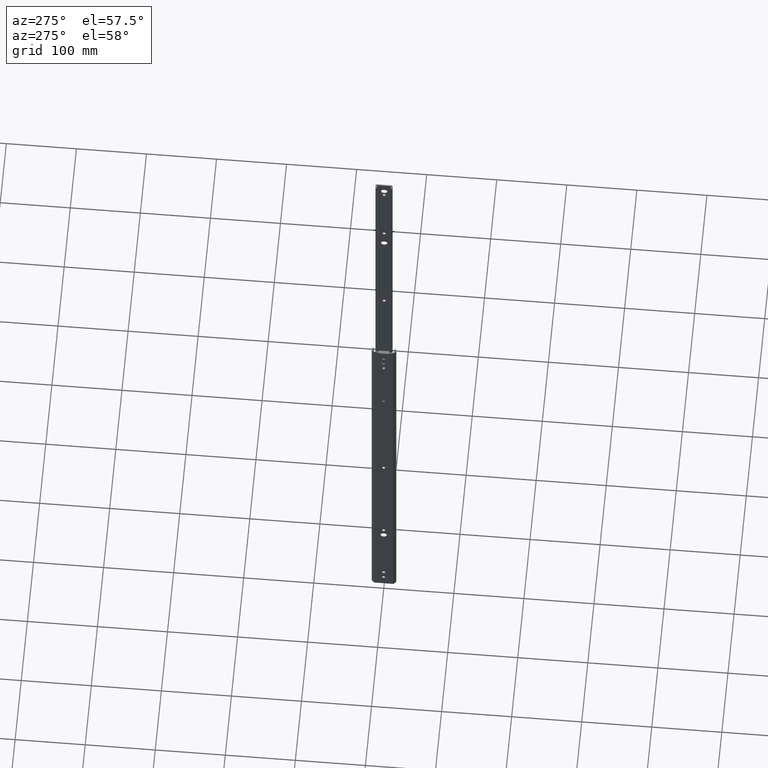
[diagram: clean part render]
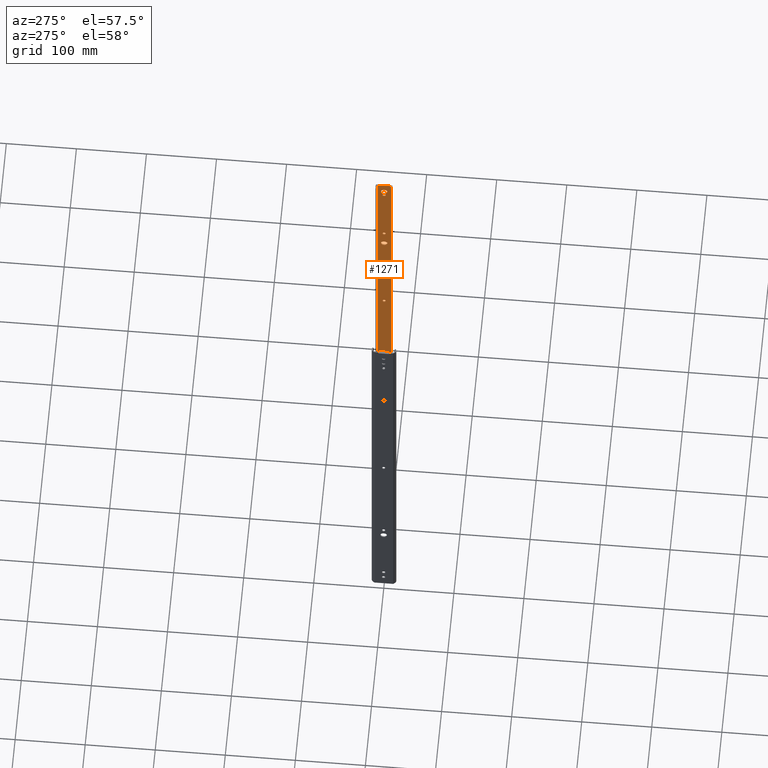
[diagram: same view with one face highlighted and labeled with its STEP entity id]
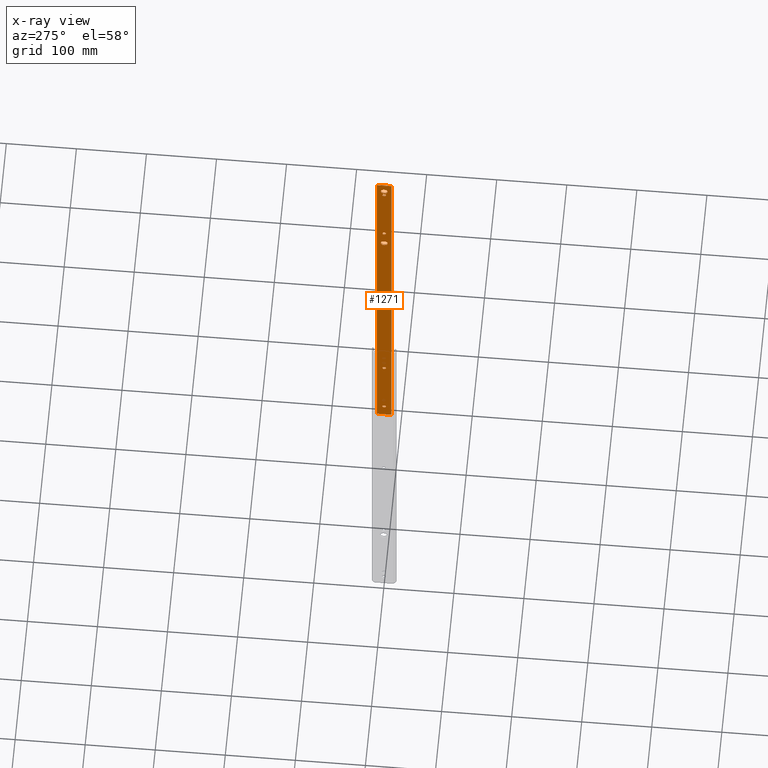
[diagram: x-ray of the same camera — body ghosted, the highlighted face saturated]
A machine part, auxiliary view. The second image highlights one B-rep face of the part: STEP entity #1271.
The next image is the same camera in x-ray: the body ghosted, the highlighted face saturated — about 0% of this face is hidden behind the body in this view.
In plain terms, the highlighted planar face has unit normal (-1, -0, 0).
Its self-contained STEP definition (entity closure, byte-faithful):
#129 = VERTEX_POINT ( 'NONE', #2255 ) ;
#156 = DIRECTION ( 'NONE',  ( 1.000000000000000000, 1.103235306215530262E-14, 0.0000000000000000000 ) ) ;
#169 = VERTEX_POINT ( 'NONE', #3537 ) ;
#201 = VECTOR ( 'NONE', #349, 1000.000000000000000 ) ;
#205 = VERTEX_POINT ( 'NONE', #1913 ) ;
#217 = ORIENTED_EDGE ( 'NONE', *, *, #3290, .T. ) ;
#253 = EDGE_CURVE ( 'NONE', #3720, #3005, #5193, .T. ) ;
#254 = LINE ( 'NONE', #1967, #3755 ) ;
#260 = VERTEX_POINT ( 'NONE', #1542 ) ;
#268 = ORIENTED_EDGE ( 'NONE', *, *, #1834, .T. ) ;
#269 = CIRCLE ( 'NONE', #3215, 4.750000000000004441 ) ;
#284 = EDGE_CURVE ( 'NONE', #5074, #1897, #1184, .T. ) ;
#291 = VERTEX_POINT ( 'NONE', #4112 ) ;
#292 = CARTESIAN_POINT ( 'NONE',  ( -1.499999999999879430, 10.00000000000000000, -605.1000000000000227 ) ) ;
#306 = ORIENTED_EDGE ( 'NONE', *, *, #850, .T. ) ;
#314 = EDGE_CURVE ( 'NONE', #2247, #169, #1610, .T. ) ;
#340 = CARTESIAN_POINT ( 'NONE',  ( -1.500000000000000000, 3.751613007716861104E-15, -304.3999999999999773 ) ) ;
#349 = DIRECTION ( 'NONE',  ( -0.0000000000000000000, -0.0000000000000000000, 1.000000000000000000 ) ) ;
#372 = EDGE_CURVE ( 'NONE', #1486, #2247, #2976, .T. ) ;
#385 = ORIENTED_EDGE ( 'NONE', *, *, #284, .T. ) ;
#394 = LINE ( 'NONE', #2816, #5225 ) ;
#427 = CARTESIAN_POINT ( 'NONE',  ( -1.500000000000000000, -6.121118908110998907E-12, -152.4000000000000909 ) ) ;
#441 = VECTOR ( 'NONE', #4182, 1000.000000000000000 ) ;
#458 = CARTESIAN_POINT ( 'NONE',  ( -1.499999999999882316, -10.28327591912161054, 0.0000000000000000000 ) ) ;
#490 = DIRECTION ( 'NONE',  ( 8.265989456220335614E-15, -1.000000000000000000, 0.0000000000000000000 ) ) ;
#494 = DIRECTION ( 'NONE',  ( 0.0000000000000000000, 0.0000000000000000000, -1.000000000000000000 ) ) ;
#497 = ORIENTED_EDGE ( 'NONE', *, *, #2948, .T. ) ;
#516 = AXIS2_PLACEMENT_3D ( 'NONE', #2521, #3337, #2937 ) ;
#540 = EDGE_CURVE ( 'NONE', #3009, #1356, #4437, .T. ) ;
#541 = AXIS2_PLACEMENT_3D ( 'NONE', #2297, #4345, #1844 ) ;
#560 = FACE_BOUND ( 'NONE', #4362, .T. ) ;
#564 = EDGE_CURVE ( 'NONE', #3189, #3498, #4698, .T. ) ;
#605 = DIRECTION ( 'NONE',  ( 1.000000000000000000, 1.103235306215530262E-14, 0.0000000000000000000 ) ) ;
#608 = EDGE_LOOP ( 'NONE', ( #1129, #4831, #1148, #385 ) ) ;
#640 = VECTOR ( 'NONE', #3788, 1000.000000000000000 ) ;
#644 = DIRECTION ( 'NONE',  ( 1.000000000000000000, 1.103235306215530262E-14, 0.0000000000000000000 ) ) ;
#651 = CARTESIAN_POINT ( 'NONE',  ( -1.499999999999975131, -2.249999999999995115, -305.1999999999999318 ) ) ;
#700 = CARTESIAN_POINT ( 'NONE',  ( -1.499999999999995781, -0.4000000000000085154, -584.1999999999999318 ) ) ;
#728 = CARTESIAN_POINT ( 'NONE',  ( -1.499999999999995781, -0.4000000000000085154, -27.65000000000000213 ) ) ;
#759 = ORIENTED_EDGE ( 'NONE', *, *, #4522, .T. ) ;
#762 = CARTESIAN_POINT ( 'NONE',  ( -1.500000000000004441, 0.3999999999999975797, -586.4499999999995907 ) ) ;
#767 = VECTOR ( 'NONE', #854, 1000.000000000000000 ) ;
#773 = AXIS2_PLACEMENT_3D ( 'NONE', #427, #2388, #3984 ) ;
#794 = DIRECTION ( 'NONE',  ( 1.107052159315210791E-14, -1.000000000000000000, -0.0000000000000000000 ) ) ;
#798 = CARTESIAN_POINT ( 'NONE',  ( -1.500000000000004441, 0.3999999999999817590, -584.1999999999999318 ) ) ;
#801 = CARTESIAN_POINT ( 'NONE',  ( -1.500000000000085043, 10.28327591912169048, 0.0000000000000000000 ) ) ;
#819 = DIRECTION ( 'NONE',  ( -1.098658201451977774E-14, 1.000000000000000000, 0.0000000000000000000 ) ) ;
#826 = DIRECTION ( 'NONE',  ( 1.000000000000000000, 1.103235306215530262E-14, 0.0000000000000000000 ) ) ;
#850 = EDGE_CURVE ( 'NONE', #3498, #4646, #2337, .T. ) ;
#851 = EDGE_LOOP ( 'NONE', ( #217, #4934 ) ) ;
#854 = DIRECTION ( 'NONE',  ( -0.0000000000000000000, -0.0000000000000000000, 1.000000000000000000 ) ) ;
#870 = CARTESIAN_POINT ( 'NONE',  ( -1.499999999999886091, -10.28327591912161054, 0.0000000000000000000 ) ) ;
#880 = CIRCLE ( 'NONE', #2151, 2.250000000000000000 ) ;
#885 = CIRCLE ( 'NONE', #1558, 2.250000000000000000 ) ;
#889 = AXIS2_PLACEMENT_3D ( 'NONE', #2536, #156, #1364 ) ;
#890 = AXIS2_PLACEMENT_3D ( 'NONE', #5165, #644, #3815 ) ;
#918 = VERTEX_POINT ( 'NONE', #651 ) ;
#933 = LINE ( 'NONE', #2543, #640 ) ;
#934 = DIRECTION ( 'NONE',  ( 1.107052159315210791E-14, -1.000000000000000000, 0.0000000000000000000 ) ) ;
#942 = EDGE_LOOP ( 'NONE', ( #759, #1865 ) ) ;
#948 = LINE ( 'NONE', #2562, #441 ) ;
#960 = EDGE_CURVE ( 'NONE', #2448, #2111, #254, .T. ) ;
#962 = FACE_OUTER_BOUND ( 'NONE', #4282, .T. ) ;
#969 = ORIENTED_EDGE ( 'NONE', *, *, #3996, .F. ) ;
#995 = EDGE_CURVE ( 'NONE', #918, #2675, #880, .T. ) ;
#1010 = FACE_BOUND ( 'NONE', #608, .T. ) ;
#1052 = VECTOR ( 'NONE', #5152, 1000.000000000000000 ) ;
#1073 = DIRECTION ( 'NONE',  ( -1.098658201451977774E-14, 1.000000000000000000, 0.0000000000000000000 ) ) ;
#1083 = VERTEX_POINT ( 'NONE', #2440 ) ;
#1126 = AXIS2_PLACEMENT_3D ( 'NONE', #798, #3277, #4477 ) ;
#1129 = ORIENTED_EDGE ( 'NONE', *, *, #4828, .T. ) ;
#1148 = ORIENTED_EDGE ( 'NONE', *, *, #1573, .T. ) ;
#1184 = LINE ( 'NONE', #3198, #5119 ) ;
#1198 = VECTOR ( 'NONE', #4947, 1000.000000000000000 ) ;
#1203 = VERTEX_POINT ( 'NONE', #4118 ) ;
#1221 = CIRCLE ( 'NONE', #889, 2.249999999999641176 ) ;
#1242 = CARTESIAN_POINT ( 'NONE',  ( -1.500000000000024647, 2.250000000000023537, -482.2000000000000455 ) ) ;
#1261 = VECTOR ( 'NONE', #5216, 1000.000000000000000 ) ;
#1271 = ADVANCED_FACE ( 'NONE', ( #4573, #560, #3740, #5029, #2224, #1010, #4626, #962 ), #2197, .T. ) ;
#1292 = VERTEX_POINT ( 'NONE', #2573 ) ;
#1296 = DIRECTION ( 'NONE',  ( -1.000000000000000000, -1.107052159315210791E-14, 0.0000000000000000000 ) ) ;
#1310 = ORIENTED_EDGE ( 'NONE', *, *, #314, .T. ) ;
#1318 = ORIENTED_EDGE ( 'NONE', *, *, #3436, .T. ) ;
#1356 = VERTEX_POINT ( 'NONE', #4244 ) ;
#1364 = DIRECTION ( 'NONE',  ( -1.098658201452153059E-14, 1.000000000000000000, 0.0000000000000000000 ) ) ;
#1377 = AXIS2_PLACEMENT_3D ( 'NONE', #2613, #605, #5023 ) ;
#1392 = DIRECTION ( 'NONE',  ( -1.098658201451978089E-14, 1.000000000000000000, 0.0000000000000000000 ) ) ;
#1401 = CARTESIAN_POINT ( 'NONE',  ( -1.499999999999886091, -10.28327591912161054, -606.5999999999999091 ) ) ;
#1442 = ORIENTED_EDGE ( 'NONE', *, *, #2706, .T. ) ;
#1486 = VERTEX_POINT ( 'NONE', #3556 ) ;
#1506 = CARTESIAN_POINT ( 'NONE',  ( -1.500000000000024647, 2.249999999999999112, -126.6000000000000227 ) ) ;
#1541 = DIRECTION ( 'NONE',  ( -1.098658201452153059E-14, 1.000000000000000000, 0.0000000000000000000 ) ) ;
#1542 = CARTESIAN_POINT ( 'NONE',  ( -1.500000000000029088, 2.649999999999983924, -25.39999999999999858 ) ) ;
#1549 = VERTEX_POINT ( 'NONE', #3648 ) ;
#1558 = AXIS2_PLACEMENT_3D ( 'NONE', #5238, #4840, #819 ) ;
#1563 = CIRCLE ( 'NONE', #2235, 2.250000000000000000 ) ;
#1567 = EDGE_CURVE ( 'NONE', #3280, #3005, #4428, .T. ) ;
#1573 = EDGE_CURVE ( 'NONE', #129, #5074, #885, .T. ) ;
#1610 = LINE ( 'NONE', #2008, #1198 ) ;
#1635 = CARTESIAN_POINT ( 'NONE',  ( -1.499999999999975353, -2.249999999999975131, -482.2000000000000455 ) ) ;
#1637 = AXIS2_PLACEMENT_3D ( 'NONE', #1401, #1296, #934 ) ;
#1641 = LINE ( 'NONE', #2319, #1052 ) ;
#1726 = CIRCLE ( 'NONE', #890, 2.250000000000000000 ) ;
#1761 = CARTESIAN_POINT ( 'NONE',  ( -1.500000000000000000, 2.402601670221626416E-14, -482.2000000000000455 ) ) ;
#1765 = VERTEX_POINT ( 'NONE', #3729 ) ;
#1773 = CIRCLE ( 'NONE', #3384, 2.250000000000001776 ) ;
#1784 = ORIENTED_EDGE ( 'NONE', *, *, #1826, .T. ) ;
#1826 = EDGE_CURVE ( 'NONE', #4646, #2870, #3079, .T. ) ;
#1830 = CARTESIAN_POINT ( 'NONE',  ( -1.499999999999881872, -10.00000000000000000, -606.5999999999999091 ) ) ;
#1834 = EDGE_CURVE ( 'NONE', #2111, #1486, #1221, .T. ) ;
#1843 = ORIENTED_EDGE ( 'NONE', *, *, #564, .T. ) ;
#1844 = DIRECTION ( 'NONE',  ( -1.098658201451978089E-14, 1.000000000000000000, 0.0000000000000000000 ) ) ;
#1846 = VERTEX_POINT ( 'NONE', #4944 ) ;
#1857 = CARTESIAN_POINT ( 'NONE',  ( -1.499999999999975131, -2.249999999999974243, -482.9999999999998863 ) ) ;
#1858 = CARTESIAN_POINT ( 'NONE',  ( -1.500000000000000000, 3.898570623614527189E-15, -305.1999999999999318 ) ) ;
#1861 = CIRCLE ( 'NONE', #4154, 2.249999999999641176 ) ;
#1865 = ORIENTED_EDGE ( 'NONE', *, *, #540, .T. ) ;
#1897 = VERTEX_POINT ( 'NONE', #1506 ) ;
#1901 = EDGE_CURVE ( 'NONE', #1083, #129, #3060, .T. ) ;
#1913 = CARTESIAN_POINT ( 'NONE',  ( -1.500000000000024647, 2.250000000000003553, -304.3999999999999773 ) ) ;
#1925 = VERTEX_POINT ( 'NONE', #3949 ) ;
#1950 = DIRECTION ( 'NONE',  ( -1.098658201451977774E-14, 1.000000000000000000, 0.0000000000000000000 ) ) ;
#1965 = CARTESIAN_POINT ( 'NONE',  ( -1.500000000000000000, -6.121118908110998907E-12, -152.4000000000000909 ) ) ;
#1967 = CARTESIAN_POINT ( 'NONE',  ( -1.499999999999995781, -0.4000000000000085154, -586.4499999999995907 ) ) ;
#1969 = ORIENTED_EDGE ( 'NONE', *, *, #2059, .T. ) ;
#1986 = VECTOR ( 'NONE', #494, 1000.000000000000000 ) ;
#2008 = CARTESIAN_POINT ( 'NONE',  ( -1.499999999999995781, -0.4000000000000085154, -581.9500000000002728 ) ) ;
#2059 = EDGE_CURVE ( 'NONE', #205, #1765, #1563, .T. ) ;
#2086 = EDGE_CURVE ( 'NONE', #2107, #1925, #394, .T. ) ;
#2107 = VERTEX_POINT ( 'NONE', #3995 ) ;
#2111 = VERTEX_POINT ( 'NONE', #762 ) ;
#2127 = CARTESIAN_POINT ( 'NONE',  ( -1.500000000000024647, 2.249999999999999112, -127.3999999999999915 ) ) ;
#2128 = VECTOR ( 'NONE', #2778, 1000.000000000000000 ) ;
#2135 = CARTESIAN_POINT ( 'NONE',  ( -1.500000000000004441, 0.3999999999999808709, -581.9500000000002728 ) ) ;
#2136 = VECTOR ( 'NONE', #3177, 1000.000000000000000 ) ;
#2151 = AXIS2_PLACEMENT_3D ( 'NONE', #1858, #2655, #1073 ) ;
#2159 = EDGE_CURVE ( 'NONE', #1765, #918, #3295, .T. ) ;
#2161 = DIRECTION ( 'NONE',  ( -1.104744950490492665E-14, 1.000000000000000000, 0.0000000000000000000 ) ) ;
#2172 = DIRECTION ( 'NONE',  ( -1.098658201451976985E-14, 1.000000000000000000, 0.0000000000000000000 ) ) ;
#2197 = PLANE ( 'NONE',  #1637 ) ;
#2202 = CIRCLE ( 'NONE', #773, 4.750000000000004441 ) ;
#2209 = ORIENTED_EDGE ( 'NONE', *, *, #960, .T. ) ;
#2224 = FACE_BOUND ( 'NONE', #4402, .T. ) ;
#2234 = CARTESIAN_POINT ( 'NONE',  ( -1.500000000000004441, 0.3999999999999975797, -27.64999999999995239 ) ) ;
#2235 = AXIS2_PLACEMENT_3D ( 'NONE', #340, #3574, #1950 ) ;
#2247 = VERTEX_POINT ( 'NONE', #2135 ) ;
#2255 = CARTESIAN_POINT ( 'NONE',  ( -1.499999999999975131, -2.250000000000000444, -127.4000000000000199 ) ) ;
#2297 = CARTESIAN_POINT ( 'NONE',  ( -1.500000000000000000, 2.417297431811393182E-14, -482.9999999999999432 ) ) ;
#2306 = DIRECTION ( 'NONE',  ( 1.000000000000000000, 1.103235306215530262E-14, 0.0000000000000000000 ) ) ;
#2319 = CARTESIAN_POINT ( 'NONE',  ( -1.499999999999881872, -10.00000000000000000, -605.1000000000000227 ) ) ;
#2337 = LINE ( 'NONE', #2757, #201 ) ;
#2344 = DIRECTION ( 'NONE',  ( -1.103235306215530262E-14, 1.000000000000000000, 0.0000000000000000000 ) ) ;
#2387 = VERTEX_POINT ( 'NONE', #2234 ) ;
#2388 = DIRECTION ( 'NONE',  ( 1.000000000000000000, 1.103235306215530262E-14, 0.0000000000000000000 ) ) ;
#2440 = CARTESIAN_POINT ( 'NONE',  ( -1.499999999999975353, -2.250000000000000888, -126.6000000000000227 ) ) ;
#2448 = VERTEX_POINT ( 'NONE', #3186 ) ;
#2452 = VECTOR ( 'NONE', #2703, 1000.000000000000000 ) ;
#2454 = ORIENTED_EDGE ( 'NONE', *, *, #4256, .F. ) ;
#2503 = ORIENTED_EDGE ( 'NONE', *, *, #3408, .T. ) ;
#2511 = EDGE_LOOP ( 'NONE', ( #3963, #2209, #268, #4045, #1310 ) ) ;
#2521 = CARTESIAN_POINT ( 'NONE',  ( -1.500000000000004441, 0.3999999999999817590, -25.39999999999999858 ) ) ;
#2525 = CARTESIAN_POINT ( 'NONE',  ( -1.500000000000110800, 9.999999999999998224, -605.0999999999997954 ) ) ;
#2536 = CARTESIAN_POINT ( 'NONE',  ( -1.500000000000004441, 0.3999999999999817590, -584.1999999999999318 ) ) ;
#2543 = CARTESIAN_POINT ( 'NONE',  ( -1.499999999999881872, -10.00000000000000000, -605.1000000000000227 ) ) ;
#2562 = CARTESIAN_POINT ( 'NONE',  ( -1.500000000000085043, 10.28327591912169048, -606.5999999999999091 ) ) ;
#2573 = CARTESIAN_POINT ( 'NONE',  ( -1.499999999999995781, -0.4000000000000085154, -27.65000000000000213 ) ) ;
#2607 = EDGE_CURVE ( 'NONE', #2609, #3720, #4124, .T. ) ;
#2609 = VERTEX_POINT ( 'NONE', #1830 ) ;
#2613 = CARTESIAN_POINT ( 'NONE',  ( -1.500000000000000000, -1.460134118258866334E-14, -15.90000000000000036 ) ) ;
#2655 = DIRECTION ( 'NONE',  ( 1.000000000000000000, 1.103235306215530262E-14, 0.0000000000000000000 ) ) ;
#2675 = VERTEX_POINT ( 'NONE', #3176 ) ;
#2692 = CARTESIAN_POINT ( 'NONE',  ( -1.499999999999975353, -2.250000000000000888, -126.6000000000000227 ) ) ;
#2703 = DIRECTION ( 'NONE',  ( -1.103235306215530262E-14, 1.000000000000000000, 0.0000000000000000000 ) ) ;
#2704 = CARTESIAN_POINT ( 'NONE',  ( -1.499999999999882316, -10.28327591912161054, -606.5999999999999091 ) ) ;
#2706 = EDGE_CURVE ( 'NONE', #291, #1203, #3536, .T. ) ;
#2748 = VECTOR ( 'NONE', #4344, 1000.000000000000000 ) ;
#2757 = CARTESIAN_POINT ( 'NONE',  ( -1.500000000000024647, 2.250000000000023537, -482.2000000000000455 ) ) ;
#2758 = CARTESIAN_POINT ( 'NONE',  ( -1.500000000000085043, 10.28327591912169048, -606.5999999999999091 ) ) ;
#2766 = EDGE_CURVE ( 'NONE', #1292, #2387, #4353, .T. ) ;
#2778 = DIRECTION ( 'NONE',  ( 0.0000000000000000000, 0.0000000000000000000, -1.000000000000000000 ) ) ;
#2786 = EDGE_CURVE ( 'NONE', #169, #2448, #1861, .T. ) ;
#2790 = CIRCLE ( 'NONE', #2965, 2.250000000000001776 ) ;
#2812 = ORIENTED_EDGE ( 'NONE', *, *, #1567, .F. ) ;
#2816 = CARTESIAN_POINT ( 'NONE',  ( -1.499999999999995781, -0.4000000000000085154, -23.14999999999999858 ) ) ;
#2833 = LINE ( 'NONE', #4822, #2128 ) ;
#2844 = DIRECTION ( 'NONE',  ( 1.103235306215530262E-14, -1.000000000000000000, -0.0000000000000000000 ) ) ;
#2870 = VERTEX_POINT ( 'NONE', #1635 ) ;
#2880 = CARTESIAN_POINT ( 'NONE',  ( -1.500000000000024647, 2.250000000000023537, -482.9999999999999432 ) ) ;
#2900 = ORIENTED_EDGE ( 'NONE', *, *, #995, .T. ) ;
#2932 = DIRECTION ( 'NONE',  ( 1.000000000000000000, 1.103235306215530262E-14, 0.0000000000000000000 ) ) ;
#2937 = DIRECTION ( 'NONE',  ( -1.098658201451976985E-14, 1.000000000000000000, 0.0000000000000000000 ) ) ;
#2948 = EDGE_CURVE ( 'NONE', #2675, #205, #4147, .T. ) ;
#2965 = AXIS2_PLACEMENT_3D ( 'NONE', #3361, #3737, #3281 ) ;
#2976 = CIRCLE ( 'NONE', #1126, 2.249999999999641176 ) ;
#3005 = VERTEX_POINT ( 'NONE', #458 ) ;
#3009 = VERTEX_POINT ( 'NONE', #4173 ) ;
#3038 = ORIENTED_EDGE ( 'NONE', *, *, #2086, .T. ) ;
#3060 = LINE ( 'NONE', #2692, #2748 ) ;
#3079 = CIRCLE ( 'NONE', #4186, 2.249999999999999556 ) ;
#3141 = EDGE_LOOP ( 'NONE', ( #2503, #4063, #1318, #4493, #3038 ) ) ;
#3162 = VECTOR ( 'NONE', #794, 1000.000000000000000 ) ;
#3176 = CARTESIAN_POINT ( 'NONE',  ( -1.500000000000024647, 2.250000000000003553, -305.1999999999999318 ) ) ;
#3177 = DIRECTION ( 'NONE',  ( 0.0000000000000000000, 0.0000000000000000000, 1.000000000000000000 ) ) ;
#3186 = CARTESIAN_POINT ( 'NONE',  ( -1.499999999999995781, -0.4000000000000085154, -586.4499999999995907 ) ) ;
#3189 = VERTEX_POINT ( 'NONE', #1857 ) ;
#3194 = CARTESIAN_POINT ( 'NONE',  ( -1.499999999999882316, -10.28327591912161054, -606.5999999999999091 ) ) ;
#3198 = CARTESIAN_POINT ( 'NONE',  ( -1.500000000000024647, 2.249999999999999112, -126.6000000000000227 ) ) ;
#3215 = AXIS2_PLACEMENT_3D ( 'NONE', #1965, #826, #3627 ) ;
#3277 = DIRECTION ( 'NONE',  ( 1.000000000000000000, 1.103235306215530262E-14, 0.0000000000000000000 ) ) ;
#3280 = VERTEX_POINT ( 'NONE', #801 ) ;
#3281 = DIRECTION ( 'NONE',  ( -1.098658201451976985E-14, 1.000000000000000000, 0.0000000000000000000 ) ) ;
#3282 = EDGE_CURVE ( 'NONE', #1846, #3629, #269, .T. ) ;
#3290 = EDGE_CURVE ( 'NONE', #3629, #1846, #2202, .T. ) ;
#3295 = LINE ( 'NONE', #4938, #1986 ) ;
#3304 = DIRECTION ( 'NONE',  ( -0.0000000000000000000, -0.0000000000000000000, 1.000000000000000000 ) ) ;
#3337 = DIRECTION ( 'NONE',  ( 1.000000000000000000, 1.103235306215530262E-14, 0.0000000000000000000 ) ) ;
#3345 = EDGE_CURVE ( 'NONE', #2870, #3189, #2833, .T. ) ;
#3361 = CARTESIAN_POINT ( 'NONE',  ( -1.499999999999995781, -0.4000000000000085154, -25.39999999999999858 ) ) ;
#3384 = AXIS2_PLACEMENT_3D ( 'NONE', #4594, #4085, #2172 ) ;
#3408 = EDGE_CURVE ( 'NONE', #1925, #1292, #2790, .T. ) ;
#3419 = EDGE_CURVE ( 'NONE', #260, #2107, #1773, .T. ) ;
#3436 = EDGE_CURVE ( 'NONE', #2387, #260, #4935, .T. ) ;
#3444 = ORIENTED_EDGE ( 'NONE', *, *, #253, .T. ) ;
#3498 = VERTEX_POINT ( 'NONE', #2880 ) ;
#3536 = LINE ( 'NONE', #2758, #1261 ) ;
#3537 = CARTESIAN_POINT ( 'NONE',  ( -1.499999999999995781, -0.4000000000000085154, -581.9500000000002728 ) ) ;
#3556 = CARTESIAN_POINT ( 'NONE',  ( -1.500000000000029088, 2.649999999999623324, -584.1999999999999318 ) ) ;
#3573 = DIRECTION ( 'NONE',  ( 0.0000000000000000000, 0.0000000000000000000, -1.000000000000000000 ) ) ;
#3574 = DIRECTION ( 'NONE',  ( 1.000000000000000000, 1.103235306215530262E-14, 0.0000000000000000000 ) ) ;
#3593 = LINE ( 'NONE', #292, #3825 ) ;
#3627 = DIRECTION ( 'NONE',  ( -1.104744950490491876E-14, 1.000000000000000000, 0.0000000000000000000 ) ) ;
#3629 = VERTEX_POINT ( 'NONE', #4623 ) ;
#3648 = CARTESIAN_POINT ( 'NONE',  ( -1.499999999999889200, -10.00000000000000000, -605.0999999999997954 ) ) ;
#3720 = VERTEX_POINT ( 'NONE', #3194 ) ;
#3729 = CARTESIAN_POINT ( 'NONE',  ( -1.499999999999975353, -2.249999999999996003, -304.3999999999999773 ) ) ;
#3737 = DIRECTION ( 'NONE',  ( 1.000000000000000000, 1.103235306215530262E-14, 0.0000000000000000000 ) ) ;
#3740 = FACE_BOUND ( 'NONE', #851, .T. ) ;
#3755 = VECTOR ( 'NONE', #2344, 1000.000000000000000 ) ;
#3788 = DIRECTION ( 'NONE',  ( 0.0000000000000000000, 0.0000000000000000000, -1.000000000000000000 ) ) ;
#3815 = DIRECTION ( 'NONE',  ( -1.098658201451977774E-14, 1.000000000000000000, 0.0000000000000000000 ) ) ;
#3825 = VECTOR ( 'NONE', #3573, 1000.000000000000000 ) ;
#3846 = CARTESIAN_POINT ( 'NONE',  ( -1.500000000000085043, 10.28327591912169048, -606.5999999999999091 ) ) ;
#3922 = CIRCLE ( 'NONE', #4604, 4.750000000000000888 ) ;
#3941 = ORIENTED_EDGE ( 'NONE', *, *, #4633, .T. ) ;
#3949 = CARTESIAN_POINT ( 'NONE',  ( -1.499999999999995781, -0.4000000000000085154, -23.14999999999999858 ) ) ;
#3963 = ORIENTED_EDGE ( 'NONE', *, *, #2786, .T. ) ;
#3984 = DIRECTION ( 'NONE',  ( -1.104744950490491876E-14, 1.000000000000000000, 0.0000000000000000000 ) ) ;
#3993 = ORIENTED_EDGE ( 'NONE', *, *, #3345, .T. ) ;
#3995 = CARTESIAN_POINT ( 'NONE',  ( -1.500000000000004441, 0.3999999999999808709, -23.14999999999999858 ) ) ;
#3996 = EDGE_CURVE ( 'NONE', #291, #3280, #948, .T. ) ;
#4045 = ORIENTED_EDGE ( 'NONE', *, *, #372, .T. ) ;
#4063 = ORIENTED_EDGE ( 'NONE', *, *, #2766, .T. ) ;
#4085 = DIRECTION ( 'NONE',  ( 1.000000000000000000, 1.103235306215530262E-14, 0.0000000000000000000 ) ) ;
#4112 = CARTESIAN_POINT ( 'NONE',  ( -1.500000000000085043, 10.28327591912169048, -606.5999999999999091 ) ) ;
#4118 = CARTESIAN_POINT ( 'NONE',  ( -1.500000000000082601, 9.999999999999957367, -606.5999999999999091 ) ) ;
#4124 = LINE ( 'NONE', #3846, #4846 ) ;
#4147 = LINE ( 'NONE', #4958, #767 ) ;
#4154 = AXIS2_PLACEMENT_3D ( 'NONE', #700, #2306, #1541 ) ;
#4173 = CARTESIAN_POINT ( 'NONE',  ( -1.499999999999947597, -4.750000000000015099, -15.90000000000000036 ) ) ;
#4182 = DIRECTION ( 'NONE',  ( 0.0000000000000000000, 0.0000000000000000000, 1.000000000000000000 ) ) ;
#4186 = AXIS2_PLACEMENT_3D ( 'NONE', #1761, #2932, #1392 ) ;
#4201 = ORIENTED_EDGE ( 'NONE', *, *, #4796, .T. ) ;
#4204 = DIRECTION ( 'NONE',  ( 1.000000000000000000, 1.103235306215530262E-14, 0.0000000000000000000 ) ) ;
#4244 = CARTESIAN_POINT ( 'NONE',  ( -1.500000000000052403, 4.749999999999985789, -15.90000000000000036 ) ) ;
#4256 = EDGE_CURVE ( 'NONE', #5087, #1203, #3593, .T. ) ;
#4282 = EDGE_LOOP ( 'NONE', ( #4201, #4467, #3444, #2812, #969, #1442, #2454, #3941 ) ) ;
#4344 = DIRECTION ( 'NONE',  ( 0.0000000000000000000, 0.0000000000000000000, -1.000000000000000000 ) ) ;
#4345 = DIRECTION ( 'NONE',  ( 1.000000000000000000, 1.103235306215530262E-14, 0.0000000000000000000 ) ) ;
#4353 = LINE ( 'NONE', #728, #2452 ) ;
#4362 = EDGE_LOOP ( 'NONE', ( #1969, #4802, #2900, #497 ) ) ;
#4402 = EDGE_LOOP ( 'NONE', ( #1784, #3993, #1843, #306 ) ) ;
#4428 = LINE ( 'NONE', #870, #3162 ) ;
#4437 = CIRCLE ( 'NONE', #1377, 4.750000000000000888 ) ;
#4467 = ORIENTED_EDGE ( 'NONE', *, *, #2607, .T. ) ;
#4477 = DIRECTION ( 'NONE',  ( -1.098658201452153059E-14, 1.000000000000000000, 0.0000000000000000000 ) ) ;
#4493 = ORIENTED_EDGE ( 'NONE', *, *, #3419, .T. ) ;
#4522 = EDGE_CURVE ( 'NONE', #1356, #3009, #3922, .T. ) ;
#4573 = FACE_BOUND ( 'NONE', #942, .T. ) ;
#4594 = CARTESIAN_POINT ( 'NONE',  ( -1.500000000000004441, 0.3999999999999817590, -25.39999999999999858 ) ) ;
#4604 = AXIS2_PLACEMENT_3D ( 'NONE', #4689, #4204, #2161 ) ;
#4623 = CARTESIAN_POINT ( 'NONE',  ( -1.500000000000052403, 4.749999999993883115, -152.4000000000000909 ) ) ;
#4626 = FACE_BOUND ( 'NONE', #3141, .T. ) ;
#4633 = EDGE_CURVE ( 'NONE', #5087, #1549, #1641, .T. ) ;
#4646 = VERTEX_POINT ( 'NONE', #1242 ) ;
#4689 = CARTESIAN_POINT ( 'NONE',  ( -1.500000000000000000, -1.460134118258866334E-14, -15.90000000000000036 ) ) ;
#4698 = CIRCLE ( 'NONE', #541, 2.249999999999999556 ) ;
#4796 = EDGE_CURVE ( 'NONE', #1549, #2609, #933, .T. ) ;
#4802 = ORIENTED_EDGE ( 'NONE', *, *, #2159, .T. ) ;
#4822 = CARTESIAN_POINT ( 'NONE',  ( -1.499999999999975353, -2.249999999999975131, -482.2000000000000455 ) ) ;
#4828 = EDGE_CURVE ( 'NONE', #1897, #1083, #1726, .T. ) ;
#4831 = ORIENTED_EDGE ( 'NONE', *, *, #1901, .T. ) ;
#4840 = DIRECTION ( 'NONE',  ( 1.000000000000000000, 1.103235306215530262E-14, 0.0000000000000000000 ) ) ;
#4846 = VECTOR ( 'NONE', #490, 1000.000000000000000 ) ;
#4934 = ORIENTED_EDGE ( 'NONE', *, *, #3282, .T. ) ;
#4935 = CIRCLE ( 'NONE', #516, 2.250000000000001776 ) ;
#4938 = CARTESIAN_POINT ( 'NONE',  ( -1.499999999999975353, -2.249999999999996003, -304.3999999999999773 ) ) ;
#4944 = CARTESIAN_POINT ( 'NONE',  ( -1.499999999999947597, -4.750000000006124878, -152.4000000000000909 ) ) ;
#4947 = DIRECTION ( 'NONE',  ( 1.103235306215530262E-14, -1.000000000000000000, -0.0000000000000000000 ) ) ;
#4958 = CARTESIAN_POINT ( 'NONE',  ( -1.500000000000024647, 2.250000000000003553, -304.3999999999999773 ) ) ;
#5023 = DIRECTION ( 'NONE',  ( -1.104744950490492665E-14, 1.000000000000000000, 0.0000000000000000000 ) ) ;
#5029 = FACE_BOUND ( 'NONE', #2511, .T. ) ;
#5074 = VERTEX_POINT ( 'NONE', #2127 ) ;
#5087 = VERTEX_POINT ( 'NONE', #2525 ) ;
#5119 = VECTOR ( 'NONE', #3304, 1000.000000000000000 ) ;
#5152 = DIRECTION ( 'NONE',  ( -1.192622389734054877E-16, -1.000000000000000000, -0.0000000000000000000 ) ) ;
#5165 = CARTESIAN_POINT ( 'NONE',  ( -1.500000000000000000, -9.270955371676162504E-16, -126.6000000000000227 ) ) ;
#5193 = LINE ( 'NONE', #2704, #2136 ) ;
#5216 = DIRECTION ( 'NONE',  ( 8.265989456220335614E-15, -1.000000000000000000, 0.0000000000000000000 ) ) ;
#5225 = VECTOR ( 'NONE', #2844, 1000.000000000000000 ) ;
#5238 = CARTESIAN_POINT ( 'NONE',  ( -1.500000000000000000, -7.801379212699414879E-16, -127.3999999999999915 ) ) ;